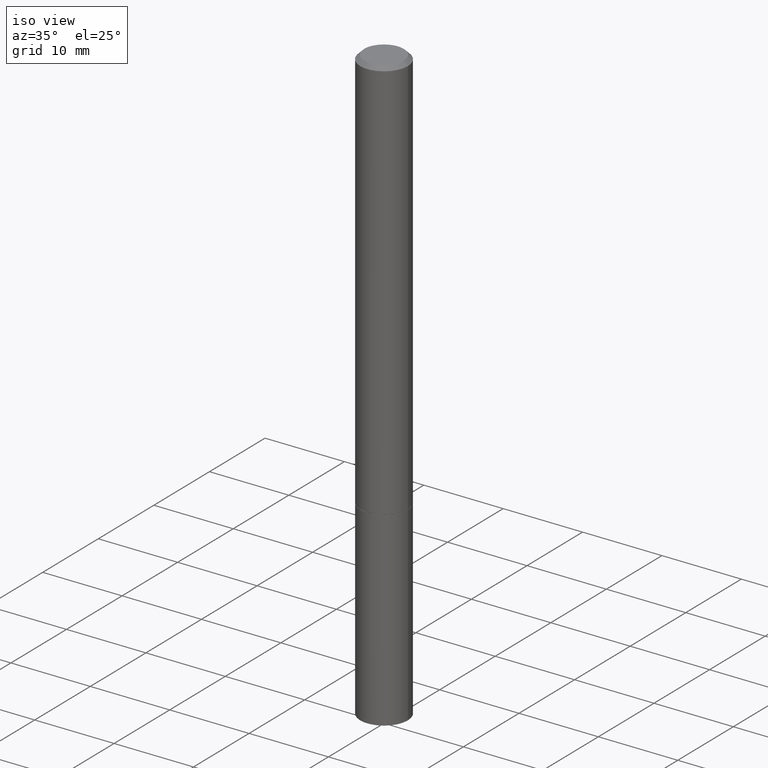
[diagram: clean part render]
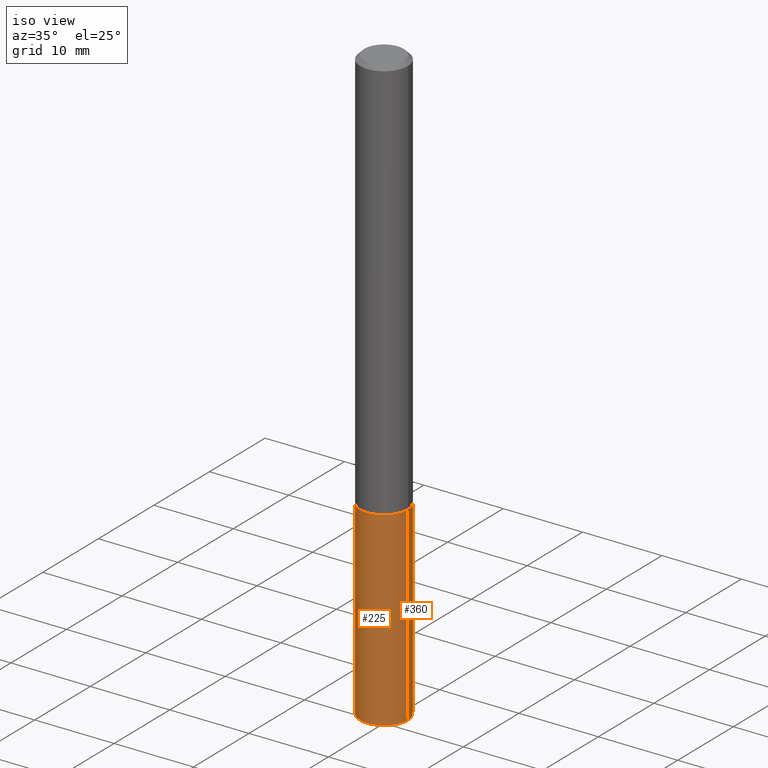
[diagram: same view with one multi-face feature highlighted, each face labeled with its STEP entity id]
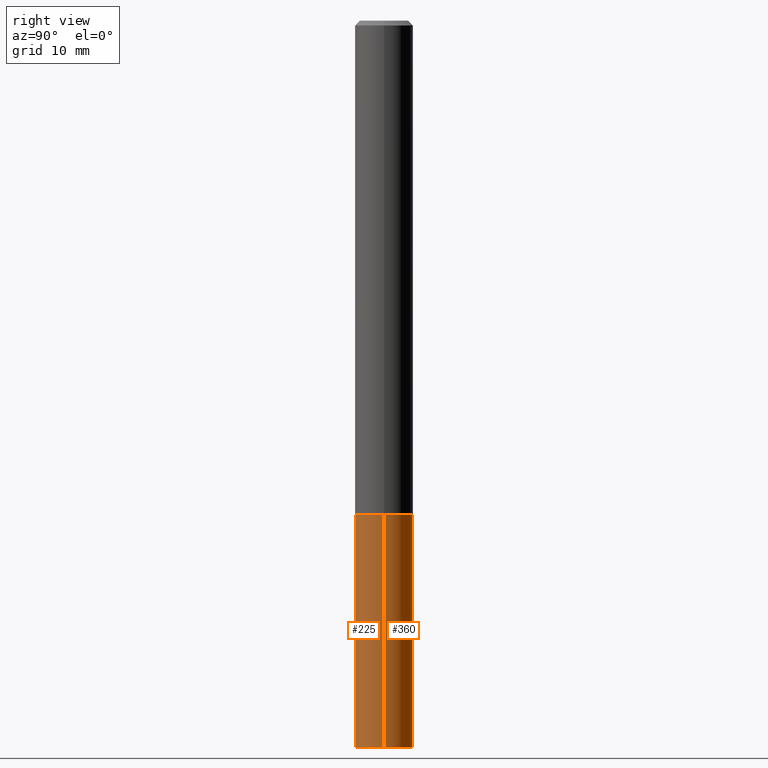
[diagram: same view with one multi-face feature highlighted, each face labeled with its STEP entity id]
A machine part, iso view. The highlighted faces form ONE feature: a constant-radius fillet chain: 2 tangent blend faces with common blend radius 2.9997 mm. The faces share edges in the B-rep.
A second angle (right view) of the same feature is appended — it is thin or edge-on in the first view.
Their STEP definitions:
[1] entity #225 (Cylinder):
#5 = LINE ( 'NONE', #130, #227 ) ;
#13 = CARTESIAN_POINT ( 'NONE',  ( 0.1181000000000000383, -8.246878922347483612E-16, 5.758764772215001842E-30 ) ) ;
#24 = CARTESIAN_POINT ( 'NONE',  ( 7.220980290903470182E-29, -1.030964609733603853E-14, -2.952799999999999869 ) ) ;
#31 = EDGE_LOOP ( 'NONE', ( #219, #71, #181, #277 ) ) ;
#45 = EDGE_CURVE ( 'NONE', #176, #136, #5, .T. ) ;
#68 = CIRCLE ( 'NONE', #144, 0.1181000000000000383 ) ;
#71 = ORIENTED_EDGE ( 'NONE', *, *, #163, .T. ) ;
#73 = VERTEX_POINT ( 'NONE', #105 ) ;
#78 = EDGE_CURVE ( 'NONE', #73, #293, #185, .T. ) ;
#89 = FACE_OUTER_BOUND ( 'NONE', #31, .T. ) ;
#95 = CARTESIAN_POINT ( 'NONE',  ( 0.000000000000000000, 0.000000000000000000, 0.000000000000000000 ) ) ;
#105 = CARTESIAN_POINT ( 'NONE',  ( 0.1181000000000000383, -1.113433398957078679E-14, -2.952799999999999869 ) ) ;
#122 = DIRECTION ( 'NONE',  ( 1.000000000000000000, -6.982962677686266711E-15, 4.876176775795935793E-29 ) ) ;
#125 = DIRECTION ( 'NONE',  ( -2.445468806185136597E-29, 3.491481338843145583E-15, 1.000000000000000000 ) ) ;
#130 = CARTESIAN_POINT ( 'NONE',  ( -0.1181000000000000383, 8.391509709326785915E-16, -5.809262341591045886E-30 ) ) ;
#136 = VERTEX_POINT ( 'NONE', #255 ) ;
#144 = AXIS2_PLACEMENT_3D ( 'NONE', #232, #153, #343 ) ;
#146 = DIRECTION ( 'NONE',  ( -2.445468806185136597E-29, 3.491481338843145583E-15, 1.000000000000000000 ) ) ;
#153 = DIRECTION ( 'NONE',  ( -2.445468806185136597E-29, 3.491481338843145583E-15, 1.000000000000000000 ) ) ;
#163 = EDGE_CURVE ( 'NONE', #176, #73, #271, .T. ) ;
#175 = CARTESIAN_POINT ( 'NONE',  ( 0.1181000000000000383, -7.835233272497899184E-15, -2.007899999999999796 ) ) ;
#176 = VERTEX_POINT ( 'NONE', #252 ) ;
#181 = ORIENTED_EDGE ( 'NONE', *, *, #78, .T. ) ;
#185 = LINE ( 'NONE', #13, #211 ) ;
#203 = CYLINDRICAL_SURFACE ( 'NONE', #305, 0.1181000000000000383 ) ;
#211 = VECTOR ( 'NONE', #245, 39.37007874015748143 ) ;
#219 = ORIENTED_EDGE ( 'NONE', *, *, #45, .F. ) ;
#225 = ADVANCED_FACE ( 'NONE', ( #89 ), #203, .T. ) ;
#227 = VECTOR ( 'NONE', #237, 39.37007874015748143 ) ;
#232 = CARTESIAN_POINT ( 'NONE',  ( 4.910256815939135309E-29, -7.010545380263150922E-15, -2.007899999999999796 ) ) ;
#237 = DIRECTION ( 'NONE',  ( -2.445468806185136877E-29, 3.491481338843145188E-15, 1.000000000000000000 ) ) ;
#245 = DIRECTION ( 'NONE',  ( -2.445468806185136877E-29, 3.491481338843145188E-15, 1.000000000000000000 ) ) ;
#252 = CARTESIAN_POINT ( 'NONE',  ( -0.1181000000000000383, -7.820944767866917317E-15, -2.952799999999999869 ) ) ;
#255 = CARTESIAN_POINT ( 'NONE',  ( -0.1181000000000000383, -7.820944767866917317E-15, -2.007899999999999796 ) ) ;
#264 = EDGE_CURVE ( 'NONE', #136, #293, #68, .T. ) ;
#271 = CIRCLE ( 'NONE', #315, 0.1181000000000000383 ) ;
#277 = ORIENTED_EDGE ( 'NONE', *, *, #264, .F. ) ;
#293 = VERTEX_POINT ( 'NONE', #175 ) ;
#305 = AXIS2_PLACEMENT_3D ( 'NONE', #95, #125, #122 ) ;
#315 = AXIS2_PLACEMENT_3D ( 'NONE', #24, #146, #357 ) ;
#343 = DIRECTION ( 'NONE',  ( 1.000000000000000000, -6.982962677686262766E-15, 0.000000000000000000 ) ) ;
#357 = DIRECTION ( 'NONE',  ( 1.000000000000000000, -6.982962677686270655E-15, 0.000000000000000000 ) ) ;
[2] entity #360 (Cylinder):
#5 = LINE ( 'NONE', #130, #227 ) ;
#13 = CARTESIAN_POINT ( 'NONE',  ( 0.1181000000000000383, -8.246878922347483612E-16, 5.758764772215001842E-30 ) ) ;
#19 = ORIENTED_EDGE ( 'NONE', *, *, #45, .T. ) ;
#23 = AXIS2_PLACEMENT_3D ( 'NONE', #183, #353, #41 ) ;
#41 = DIRECTION ( 'NONE',  ( 1.000000000000000000, -6.982962677686266711E-15, 4.876176775795935793E-29 ) ) ;
#43 = ORIENTED_EDGE ( 'NONE', *, *, #112, .F. ) ;
#45 = EDGE_CURVE ( 'NONE', #176, #136, #5, .T. ) ;
#73 = VERTEX_POINT ( 'NONE', #105 ) ;
#78 = EDGE_CURVE ( 'NONE', #73, #293, #185, .T. ) ;
#79 = ORIENTED_EDGE ( 'NONE', *, *, #78, .F. ) ;
#87 = CARTESIAN_POINT ( 'NONE',  ( 4.910256815939135309E-29, -7.010545380263150922E-15, -2.007899999999999796 ) ) ;
#105 = CARTESIAN_POINT ( 'NONE',  ( 0.1181000000000000383, -1.113433398957078679E-14, -2.952799999999999869 ) ) ;
#112 = EDGE_CURVE ( 'NONE', #293, #136, #173, .T. ) ;
#127 = CIRCLE ( 'NONE', #334, 0.1181000000000000383 ) ;
#130 = CARTESIAN_POINT ( 'NONE',  ( -0.1181000000000000383, 8.391509709326785915E-16, -5.809262341591045886E-30 ) ) ;
#132 = CARTESIAN_POINT ( 'NONE',  ( 7.220980290903470182E-29, -1.030964609733603853E-14, -2.952799999999999869 ) ) ;
#136 = VERTEX_POINT ( 'NONE', #255 ) ;
#173 = CIRCLE ( 'NONE', #294, 0.1181000000000000383 ) ;
#175 = CARTESIAN_POINT ( 'NONE',  ( 0.1181000000000000383, -7.835233272497899184E-15, -2.007899999999999796 ) ) ;
#176 = VERTEX_POINT ( 'NONE', #252 ) ;
#183 = CARTESIAN_POINT ( 'NONE',  ( 0.000000000000000000, 0.000000000000000000, 0.000000000000000000 ) ) ;
#185 = LINE ( 'NONE', #13, #211 ) ;
#198 = DIRECTION ( 'NONE',  ( 1.000000000000000000, -6.982962677686262766E-15, 0.000000000000000000 ) ) ;
#211 = VECTOR ( 'NONE', #245, 39.37007874015748143 ) ;
#218 = ORIENTED_EDGE ( 'NONE', *, *, #335, .T. ) ;
#227 = VECTOR ( 'NONE', #237, 39.37007874015748143 ) ;
#237 = DIRECTION ( 'NONE',  ( -2.445468806185136877E-29, 3.491481338843145188E-15, 1.000000000000000000 ) ) ;
#239 = DIRECTION ( 'NONE',  ( -2.445468806185136597E-29, 3.491481338843145583E-15, 1.000000000000000000 ) ) ;
#245 = DIRECTION ( 'NONE',  ( -2.445468806185136877E-29, 3.491481338843145188E-15, 1.000000000000000000 ) ) ;
#252 = CARTESIAN_POINT ( 'NONE',  ( -0.1181000000000000383, -7.820944767866917317E-15, -2.952799999999999869 ) ) ;
#255 = CARTESIAN_POINT ( 'NONE',  ( -0.1181000000000000383, -7.820944767866917317E-15, -2.007899999999999796 ) ) ;
#257 = EDGE_LOOP ( 'NONE', ( #218, #19, #43, #79 ) ) ;
#259 = FACE_OUTER_BOUND ( 'NONE', #257, .T. ) ;
#273 = CYLINDRICAL_SURFACE ( 'NONE', #23, 0.1181000000000000383 ) ;
#293 = VERTEX_POINT ( 'NONE', #175 ) ;
#294 = AXIS2_PLACEMENT_3D ( 'NONE', #87, #356, #198 ) ;
#334 = AXIS2_PLACEMENT_3D ( 'NONE', #132, #239, #348 ) ;
#335 = EDGE_CURVE ( 'NONE', #73, #176, #127, .T. ) ;
#348 = DIRECTION ( 'NONE',  ( 1.000000000000000000, -6.982962677686270655E-15, 0.000000000000000000 ) ) ;
#353 = DIRECTION ( 'NONE',  ( -2.445468806185136597E-29, 3.491481338843145583E-15, 1.000000000000000000 ) ) ;
#356 = DIRECTION ( 'NONE',  ( -2.445468806185136597E-29, 3.491481338843145583E-15, 1.000000000000000000 ) ) ;
#360 = ADVANCED_FACE ( 'NONE', ( #259 ), #273, .T. ) ;